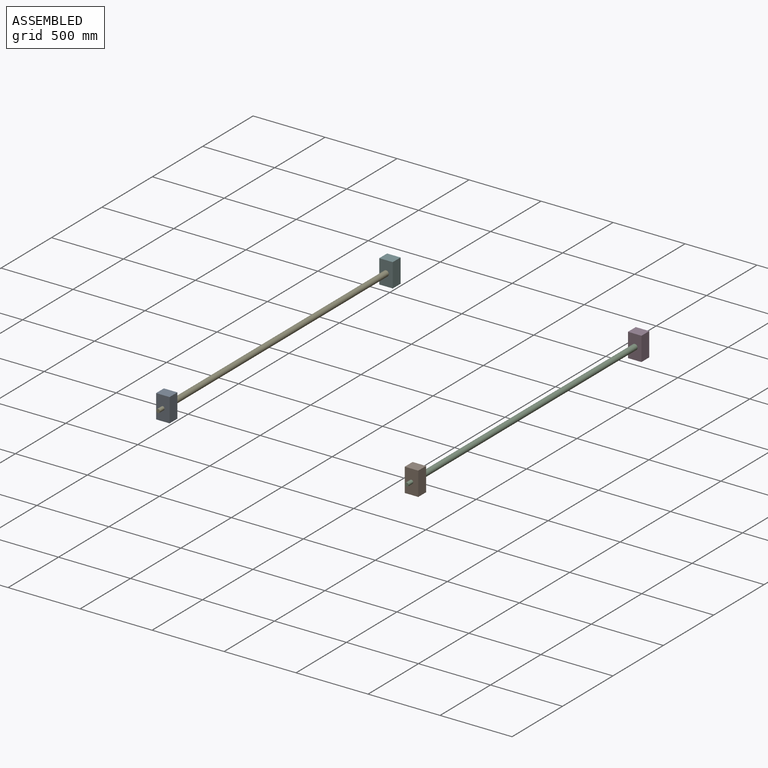
[diagram: assembled view]
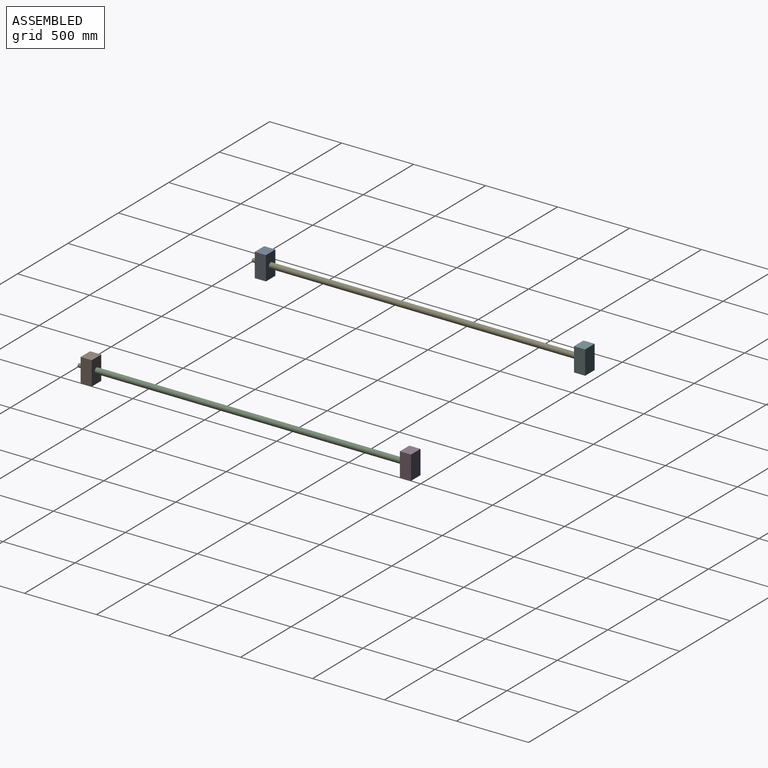
[diagram: assembled view, second angle]
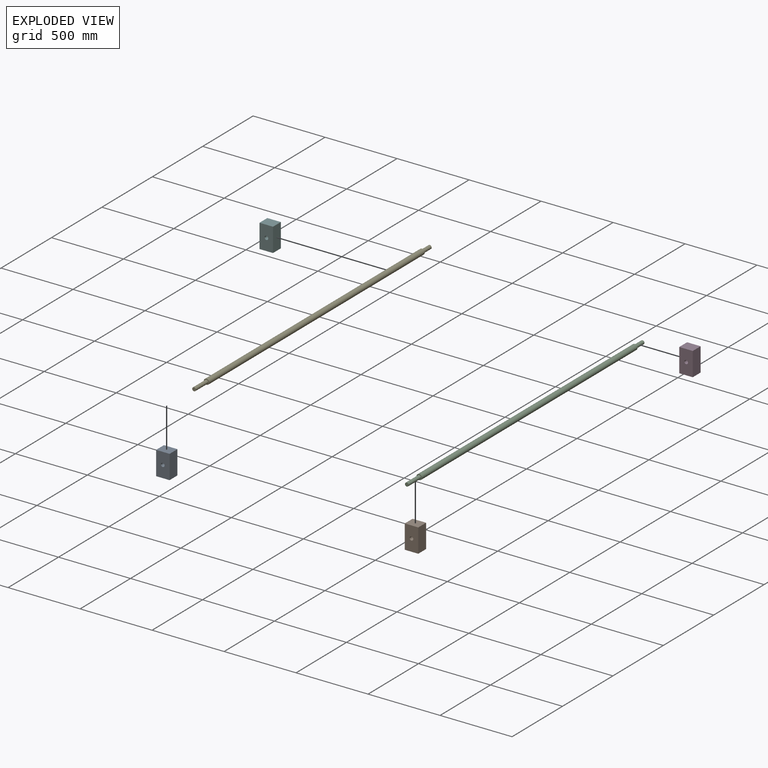
[diagram: exploded view]
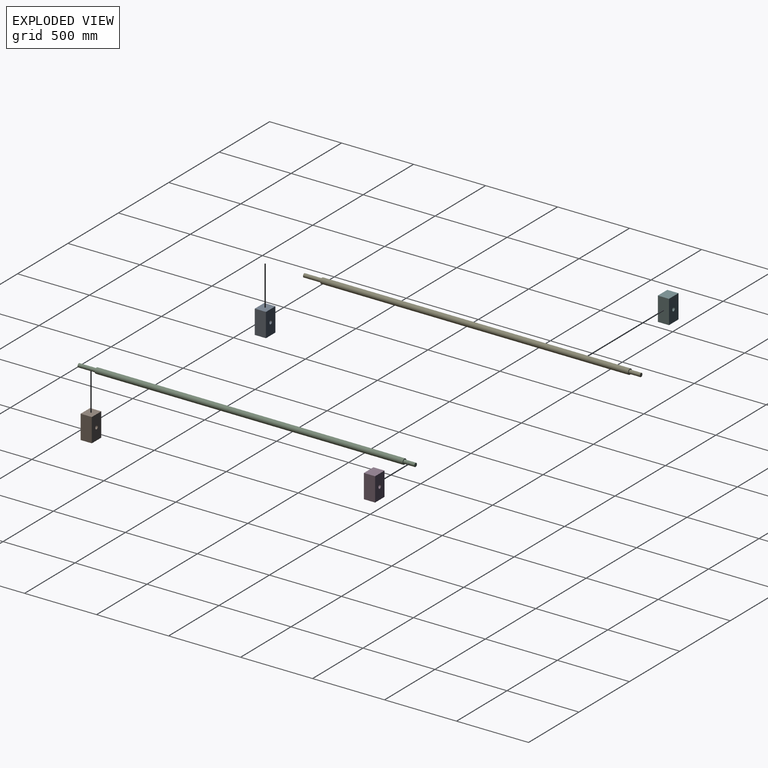
[diagram: exploded view, second angle]
ASSEMBLY  parts=6 mates=2
PART A: 7 faces, bbox 165.1x77.5x93.7 mm
  f0: plane 165.1x77.47mm, normal (0,0,1), area 12790.3mm2, adj f1,f3,f4,f5
  f1: plane 93.73x77.47mm, normal (-1,0,0), area 7261mm2, adj f0,f2,f4,f5
  f2: plane 165.1x77.47mm, normal (0,0,-1), area 12790.3mm2, adj f1,f3,f4,f5
  f3: plane 93.73x77.47mm, normal (1,0,0), area 7261mm2, adj f0,f2,f4,f5
  f4: plane 165.1x93.73mm, normal (0,-1,0), area 14967.5mm2, adj f0,f1,f2,f3,f6
  f5: plane 165.1x93.73mm, normal (0,1,0), area 14967.5mm2, adj f0,f1,f2,f3,f6
  f6: cylinder r=12.7mm len=77.47mm, axis (0,-1,0), area 6181.8mm2, adj f4,f5
PART B: same geometry as A
PART C: 7 faces, bbox 38.1x2339.3x38.1 mm
  f0: cylinder r=19.05mm len=2138.38mm, axis (0,1,0), area 255952.1mm2, adj f2,f5
  f1: cylinder r=12.7mm len=77.47mm, axis (0,1,0), area 6181.8mm2, adj f2,f3
  f2: plane 38.1x38.1mm, normal (0,1,0), area 633.4mm2, adj f0,f1
  f3: plane 25.4x25.4mm, normal (0,1,0), area 506.7mm2, adj f1
  f4: cylinder r=12.7mm len=123.44mm, axis (0,-1,0), area 9850.4mm2, adj f5,f6
  f5: plane 38.1x38.1mm, normal (0,-1,0), area 633.4mm2, adj f0,f4
  f6: plane 25.4x25.4mm, normal (0,-1,0), area 506.7mm2, adj f4
PART D: same geometry as A
PART E: same geometry as C
PART F: same geometry as A
PLACE A rot(axis=(0,-1,0),90deg) t=(-1571.08,-2789.63,-44.61)mm
PLACE B rot(axis=(0,-1,0),90deg) t=(156.12,-2789.63,-44.61)mm
PLACE C t=(167.77,-573.79,-12)mm
PLACE D rot(axis=(0,1,0),90deg) t=(159.3,-573.79,44.61)mm
PLACE E t=(-1559.43,-573.79,-12)mm
PLACE F rot(axis=(0,1,0),90deg) t=(-1567.9,-573.79,44.61)mm
MATE fastened A.f6 <-> E.f0  axis (0,1,0) through (-1569.49,-2789.63,0)mm
MATE fastened B.f6 <-> C.f0  axis (0,1,0) through (157.71,-2789.63,0)mm
